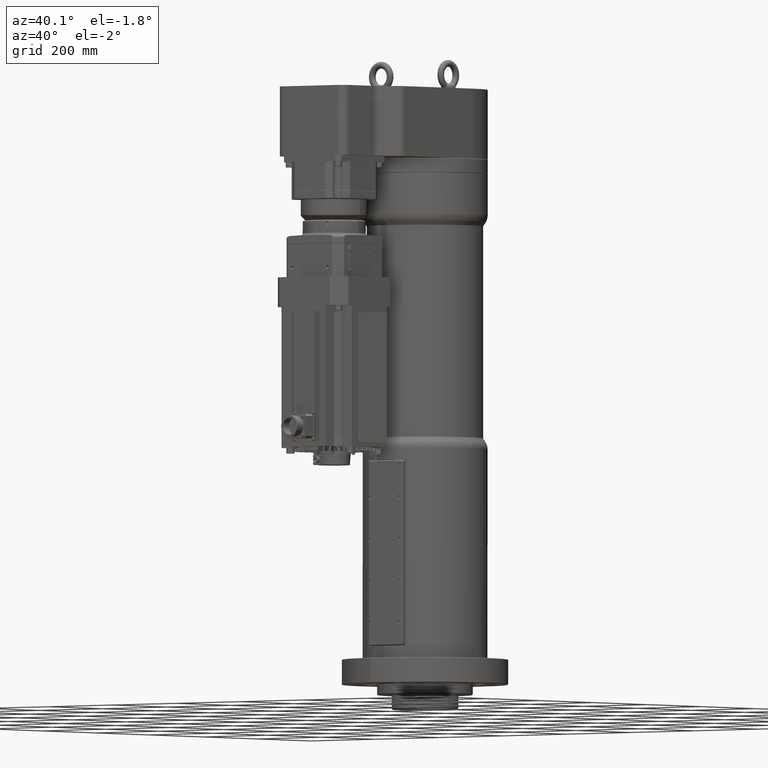
[diagram: clean part render]
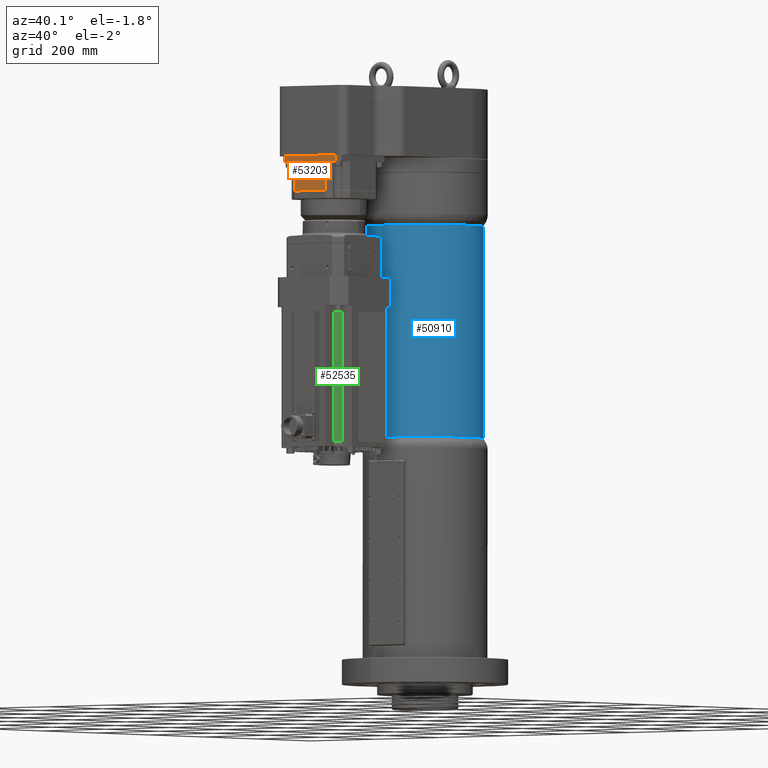
[diagram: same view with three faces highlighted in distinct colors, each labeled with its STEP entity id]
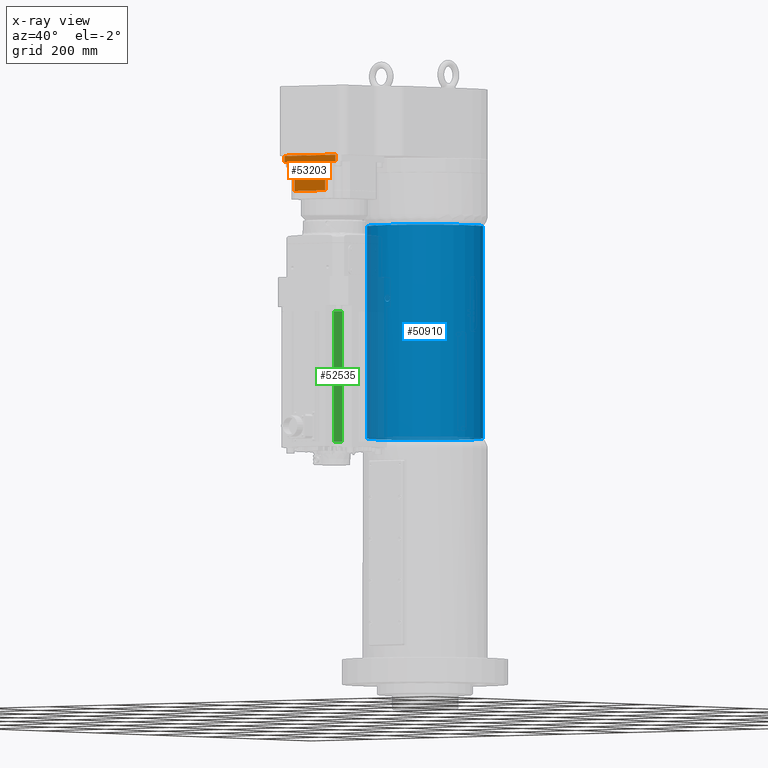
[diagram: x-ray of the same camera — body ghosted, the three highlighted faces saturated]
A machine part, auxiliary view with three faces highlighted in distinct colors.
The next image is the same camera in x-ray (body ghosted, the three faces saturated) — at least one of them is partly hidden behind the body in this view.
Their STEP definitions:

[orange] entity #53203 — the highlighted planar face has unit normal (0, -1, -0).
#7556=PLANE('',#57493);
#10201=FACE_OUTER_BOUND('',#13371,.T.);
#13371=EDGE_LOOP('',(#48344,#48345,#48346,#48347,#48348,#48349,#48350,#48351));
#13899=LINE('',#72322,#18306);
#17719=LINE('',#98074,#22126);
#17728=LINE('',#98116,#22135);
#17745=LINE('',#98165,#22152);
#17746=LINE('',#98167,#22153);
#17747=LINE('',#98169,#22154);
#17748=LINE('',#98171,#22155);
#17749=LINE('',#98172,#22156);
#18306=VECTOR('',#58795,158.7450786639);
#22126=VECTOR('',#69719,31.37253933194);
#22135=VECTOR('',#69754,31.37253933194);
#22152=VECTOR('',#69805,15.);
#22153=VECTOR('',#69808,15.);
#22154=VECTOR('',#69809,69.5);
#22155=VECTOR('',#69810,96.);
#22156=VECTOR('',#69811,69.5);
#23430=VERTEX_POINT('',#72319);
#23431=VERTEX_POINT('',#72321);
#27506=VERTEX_POINT('',#98072);
#27507=VERTEX_POINT('',#98073);
#27526=VERTEX_POINT('',#98113);
#27527=VERTEX_POINT('',#98115);
#27543=VERTEX_POINT('',#98168);
#27544=VERTEX_POINT('',#98170);
#28379=EDGE_CURVE('',#23431,#23430,#13899,.T.);
#34538=EDGE_CURVE('',#27506,#27507,#17719,.T.);
#34558=EDGE_CURVE('',#27526,#27527,#17728,.T.);
#34584=EDGE_CURVE('',#23431,#27526,#17745,.T.);
#34585=EDGE_CURVE('',#23430,#27507,#17746,.T.);
#34586=EDGE_CURVE('',#27543,#27506,#17747,.T.);
#34587=EDGE_CURVE('',#27544,#27543,#17748,.T.);
#34588=EDGE_CURVE('',#27544,#27527,#17749,.T.);
#48344=ORIENTED_EDGE('',*,*,#34558,.F.);
#48345=ORIENTED_EDGE('',*,*,#34584,.F.);
#48346=ORIENTED_EDGE('',*,*,#28379,.T.);
#48347=ORIENTED_EDGE('',*,*,#34585,.T.);
#48348=ORIENTED_EDGE('',*,*,#34538,.F.);
#48349=ORIENTED_EDGE('',*,*,#34586,.F.);
#48350=ORIENTED_EDGE('',*,*,#34587,.F.);
#48351=ORIENTED_EDGE('',*,*,#34588,.T.);
#53203=ADVANCED_FACE('',(#10201),#7556,.T.);
#57493=AXIS2_PLACEMENT_3D('',#98166,#69806,#69807);
#58795=DIRECTION('',(-1.,-8.02830024682065E-15,-1.61138470006697E-16));
#69719=DIRECTION('',(-1.,-8.02830024682065E-15,-1.61138470006697E-16));
#69754=DIRECTION('',(-1.,-8.02830024682065E-15,-1.61138470006697E-16));
#69805=DIRECTION('',(1.61138470006697E-16,2.57733127641484E-19,-1.));
#69806=DIRECTION('center_axis',(8.02830024682065E-15,-1.,-2.5773312764019E-19));
#69807=DIRECTION('ref_axis',(-1.,-8.02830024682065E-15,-1.61138470006697E-16));
#69808=DIRECTION('',(1.61138470006697E-16,2.57733127641484E-19,-1.));
#69809=DIRECTION('',(-1.61138470006697E-16,-2.57733127641484E-19,1.));
#69810=DIRECTION('',(-1.,-8.02830024682065E-15,-1.61138470006697E-16));
#69811=DIRECTION('',(-1.61138470006697E-16,-2.57733127641484E-19,1.));
#72319=CARTESIAN_POINT('',(-79.3725393319395,-427.500000000003,1258.));
#72321=CARTESIAN_POINT('',(79.3725393319405,-427.500000000001,1258.));
#72322=CARTESIAN_POINT('',(79.3725393319405,-427.500000000001,1258.));
#98072=CARTESIAN_POINT('',(-47.9999999999996,-427.500000000003,1243.));
#98073=CARTESIAN_POINT('',(-79.3725393319395,-427.500000000003,1243.));
#98074=CARTESIAN_POINT('',(-47.9999999999996,-427.500000000003,1243.));
#98113=CARTESIAN_POINT('',(79.3725393319405,-427.500000000001,1243.));
#98115=CARTESIAN_POINT('',(48.0000000000005,-427.500000000002,1243.));
#98116=CARTESIAN_POINT('',(79.3725393319405,-427.500000000001,1243.));
#98165=CARTESIAN_POINT('',(79.3725393319405,-427.500000000001,1258.));
#98166=CARTESIAN_POINT('Origin',(79.3725393319405,-427.500000000001,1258.));
#98167=CARTESIAN_POINT('',(-79.3725393319395,-427.500000000003,1258.));
#98168=CARTESIAN_POINT('',(-47.9999999999995,-427.500000000003,1173.5));
#98169=CARTESIAN_POINT('',(-47.9999999999995,-427.500000000003,1173.5));
#98170=CARTESIAN_POINT('',(48.0000000000005,-427.500000000002,1173.5));
#98171=CARTESIAN_POINT('',(48.0000000000005,-427.500000000002,1173.5));
#98172=CARTESIAN_POINT('',(48.0000000000005,-427.500000000002,1173.5));

[blue] entity #50910 — the highlighted cylindrical surface (bore or boss wall) has radius 140 mm, axis along (0, 0, -1).
#844=FACE_BOUND('',#10757,.T.);
#845=FACE_BOUND('',#10758,.T.);
#4480=CIRCLE('',#54019,140.);
#4483=CIRCLE('',#54027,140.);
#4494=CIRCLE('',#54045,140.);
#4495=CIRCLE('',#54047,140.);
#7908=FACE_OUTER_BOUND('',#10756,.T.);
#10756=EDGE_LOOP('',(#36239,#36240,#36241,#36242,#36243,#36244,#36245,#36246));
#10757=EDGE_LOOP('',(#36247,#36248,#36249,#36250,#36251,#36252));
#10758=EDGE_LOOP('',(#36253,#36254,#36255,#36256,#36257,#36258,#36259,#36260));
#14010=LINE('',#72762,#18417);
#14013=LINE('',#72768,#18420);
#14027=LINE('',#72869,#18434);
#14031=LINE('',#72890,#18438);
#14041=LINE('',#72946,#18448);
#14042=LINE('',#72947,#18449);
#18417=VECTOR('',#59080,10.);
#18420=VECTOR('',#59085,10.);
#18434=VECTOR('',#59143,10.);
#18438=VECTOR('',#59153,10.);
#18448=VECTOR('',#59211,140.);
#18449=VECTOR('',#59212,140.);
#22611=B_SPLINE_CURVE_WITH_KNOTS('',3,(#72419,#72420,#72421,#72422,#72423,
#72424,#72425,#72426,#72427,#72428,#72429,#72430,#72431,#72432,#72433,#72434,
#72435,#72436,#72437),.UNSPECIFIED.,.F.,.F.,(4,2,2,2,3,2,2,2,4),(3.53557418942342,
3.831766218132,4.12795824684059,4.42102858303591,4.71409891923122,5.00716925542654,
5.30023959162185,5.59643162033044,5.89262364903903),.UNSPECIFIED.);
#22612=B_SPLINE_CURVE_WITH_KNOTS('',3,(#72438,#72439,#72440,#72441,#72442,
#72443,#72444,#72445,#72446,#72447,#72448,#72449,#72450,#72451,#72452,#72453,
#72454,#72455),.UNSPECIFIED.,.F.,.F.,(4,2,2,2,2,2,2,2,4),(1.17852472980781,
1.47471675851639,1.77090878722498,2.0639791234203,2.35704945961561,2.65011979581093,
2.94319013200624,3.23938216071483,3.53557418942342),.UNSPECIFIED.);
#22618=B_SPLINE_CURVE_WITH_KNOTS('',3,(#72734,#72735,#72736,#72737,#72738,
#72739,#72740,#72741,#72742,#72743),.UNSPECIFIED.,.F.,.F.,(4,2,2,2,4),(0.,
0.384366731644399,0.768733463288798,1.15309982792019,1.53746619255158),
 .UNSPECIFIED.);
#22619=B_SPLINE_CURVE_WITH_KNOTS('',3,(#72750,#72751,#72752,#72753,#72754,
#72755,#72756,#72757,#72758,#72759),.UNSPECIFIED.,.F.,.F.,(4,2,2,2,4),(1.53746619255158,
1.92183255718296,2.30619892181435,2.69056565345875,3.07493238510315),
 .UNSPECIFIED.);
#22620=B_SPLINE_CURVE_WITH_KNOTS('',3,(#72774,#72775,#72776,#72777,#72778,
#72779,#72780,#72781,#72782,#72783),.UNSPECIFIED.,.F.,.F.,(4,2,2,2,4),(-1.53746619255157,
-1.15309982792019,-0.768733463288798,-0.384366731644399,0.),
 .UNSPECIFIED.);
#22621=B_SPLINE_CURVE_WITH_KNOTS('',3,(#72784,#72785,#72786,#72787,#72788,
#72789,#72790,#72791,#72792,#72793),.UNSPECIFIED.,.F.,.F.,(4,2,2,2,4),(-3.07493238510315,
-2.69056565345875,-2.30619892181435,-1.92183255718296,-1.53746619255157),
 .UNSPECIFIED.);
#22622=B_SPLINE_CURVE_WITH_KNOTS('',3,(#72831,#72832,#72833,#72834,#72835,
#72836,#72837,#72838,#72839,#72840),.UNSPECIFIED.,.F.,.F.,(4,2,2,2,4),(0.,
0.188358551712789,0.376717103425577,0.565603993585421,0.754490883745265),
 .UNSPECIFIED.);
#22623=B_SPLINE_CURVE_WITH_KNOTS('',3,(#72849,#72850,#72851,#72852,#72853,
#72854,#72855,#72856,#72857,#72858),.UNSPECIFIED.,.F.,.F.,(4,2,2,2,4),(0.75378858509401,
0.942675475253856,1.1315623654137,1.31992091712649,1.50827946883927),
 .UNSPECIFIED.);
#22624=B_SPLINE_CURVE_WITH_KNOTS('',3,(#72875,#72876,#72877,#72878,#72879,
#72880,#72881,#72882,#72883,#72884),.UNSPECIFIED.,.F.,.F.,(4,2,2,2,4),(1.50827946883928,
1.69663802055208,1.88499657226487,2.07388346242471,2.26277035258456),
 .UNSPECIFIED.);
#22625=B_SPLINE_CURVE_WITH_KNOTS('',3,(#72896,#72897,#72898,#72899,#72900,
#72901,#72902,#72903,#72904,#72905),.UNSPECIFIED.,.F.,.F.,(4,2,2,2,4),(-0.754490883745259,
-0.565603993585415,-0.37671710342557,-0.188358551712785,0.),
 .UNSPECIFIED.);
#23459=VERTEX_POINT('',#72416);
#23460=VERTEX_POINT('',#72418);
#23545=VERTEX_POINT('',#72732);
#23546=VERTEX_POINT('',#72733);
#23549=VERTEX_POINT('',#72748);
#23550=VERTEX_POINT('',#72761);
#23552=VERTEX_POINT('',#72767);
#23554=VERTEX_POINT('',#72773);
#23569=VERTEX_POINT('',#72829);
#23570=VERTEX_POINT('',#72830);
#23573=VERTEX_POINT('',#72847);
#23574=VERTEX_POINT('',#72848);
#23577=VERTEX_POINT('',#72868);
#23579=VERTEX_POINT('',#72874);
#23581=VERTEX_POINT('',#72889);
#23583=VERTEX_POINT('',#72895);
#23592=VERTEX_POINT('',#72940);
#23593=VERTEX_POINT('',#72944);
#28430=EDGE_CURVE('',#23460,#23459,#22611,.T.);
#28431=EDGE_CURVE('',#23459,#23460,#22612,.T.);
#28537=EDGE_CURVE('',#23545,#23546,#22618,.T.);
#28541=EDGE_CURVE('',#23546,#23549,#22619,.T.);
#28542=EDGE_CURVE('',#23549,#23550,#14010,.T.);
#28545=EDGE_CURVE('',#23552,#23545,#14013,.T.);
#28548=EDGE_CURVE('',#23554,#23552,#22620,.T.);
#28549=EDGE_CURVE('',#23550,#23554,#22621,.T.);
#28567=EDGE_CURVE('',#23569,#23570,#22622,.T.);
#28571=EDGE_CURVE('',#23573,#23574,#22623,.T.);
#28575=EDGE_CURVE('',#23570,#23573,#4480,.T.);
#28577=EDGE_CURVE('',#23574,#23577,#14027,.T.);
#28580=EDGE_CURVE('',#23577,#23579,#22624,.T.);
#28583=EDGE_CURVE('',#23581,#23569,#14031,.T.);
#28586=EDGE_CURVE('',#23583,#23581,#22625,.T.);
#28589=EDGE_CURVE('',#23579,#23583,#4483,.T.);
#28605=EDGE_CURVE('',#23592,#23592,#4494,.T.);
#28607=EDGE_CURVE('',#23593,#23593,#4495,.T.);
#28608=EDGE_CURVE('',#23593,#23459,#14041,.T.);
#28609=EDGE_CURVE('',#23460,#23592,#14042,.T.);
#36239=ORIENTED_EDGE('',*,*,#28607,.F.);
#36240=ORIENTED_EDGE('',*,*,#28608,.T.);
#36241=ORIENTED_EDGE('',*,*,#28431,.T.);
#36242=ORIENTED_EDGE('',*,*,#28609,.T.);
#36243=ORIENTED_EDGE('',*,*,#28605,.T.);
#36244=ORIENTED_EDGE('',*,*,#28609,.F.);
#36245=ORIENTED_EDGE('',*,*,#28430,.T.);
#36246=ORIENTED_EDGE('',*,*,#28608,.F.);
#36247=ORIENTED_EDGE('',*,*,#28549,.T.);
#36248=ORIENTED_EDGE('',*,*,#28548,.T.);
#36249=ORIENTED_EDGE('',*,*,#28545,.T.);
#36250=ORIENTED_EDGE('',*,*,#28537,.T.);
#36251=ORIENTED_EDGE('',*,*,#28541,.T.);
#36252=ORIENTED_EDGE('',*,*,#28542,.T.);
#36253=ORIENTED_EDGE('',*,*,#28589,.T.);
#36254=ORIENTED_EDGE('',*,*,#28586,.T.);
#36255=ORIENTED_EDGE('',*,*,#28583,.T.);
#36256=ORIENTED_EDGE('',*,*,#28567,.T.);
#36257=ORIENTED_EDGE('',*,*,#28575,.T.);
#36258=ORIENTED_EDGE('',*,*,#28571,.T.);
#36259=ORIENTED_EDGE('',*,*,#28577,.T.);
#36260=ORIENTED_EDGE('',*,*,#28580,.T.);
#50229=CYLINDRICAL_SURFACE('',#54046,140.);
#50910=ADVANCED_FACE('',(#7908,#844,#845),#50229,.T.);
#54019=AXIS2_PLACEMENT_3D('',#72865,#59138,#59139);
#54027=AXIS2_PLACEMENT_3D('',#72910,#59163,#59164);
#54045=AXIS2_PLACEMENT_3D('',#72941,#59204,#59205);
#54046=AXIS2_PLACEMENT_3D('',#72943,#59207,#59208);
#54047=AXIS2_PLACEMENT_3D('',#72945,#59209,#59210);
#59080=DIRECTION('',(0.,0.,1.));
#59085=DIRECTION('',(0.,0.,-1.));
#59138=DIRECTION('center_axis',(0.,0.,-1.));
#59139=DIRECTION('ref_axis',(1.03537993810258E-30,1.,0.));
#59143=DIRECTION('',(0.,0.,1.));
#59153=DIRECTION('',(0.,0.,-1.));
#59163=DIRECTION('center_axis',(9.79608551139843E-17,-1.01426704104393E-46,
1.));
#59164=DIRECTION('ref_axis',(1.03537993810258E-30,1.,0.));
#59204=DIRECTION('center_axis',(0.,0.,-1.));
#59205=DIRECTION('ref_axis',(1.,-1.03537993810258E-30,0.));
#59207=DIRECTION('center_axis',(0.,0.,-1.));
#59208=DIRECTION('ref_axis',(1.03537993810258E-30,1.,0.));
#59209=DIRECTION('center_axis',(0.,0.,-1.));
#59210=DIRECTION('ref_axis',(1.,-1.03537993810258E-30,0.));
#59211=DIRECTION('',(0.,0.,1.));
#59212=DIRECTION('',(0.,0.,1.));
#72416=CARTESIAN_POINT('',(-1.44953191334361E-28,-140.,915.));
#72418=CARTESIAN_POINT('',(-1.44953191334361E-28,-140.,931.));
#72419=CARTESIAN_POINT('Ctrl Pts',(-1.16573417585641E-14,-140.,931.));
#72420=CARTESIAN_POINT('Ctrl Pts',(0.98730676236195,-140.,931.));
#72421=CARTESIAN_POINT('Ctrl Pts',(2.03430028405672,-139.988472015113,930.786688694851));
#72422=CARTESIAN_POINT('Ctrl Pts',(3.94245003654241,-139.947732245081,929.935904367843));
#72423=CARTESIAN_POINT('Ctrl Pts',(4.80379668046354,-139.919173776903,929.298827305031));
#72424=CARTESIAN_POINT('Ctrl Pts',(6.13979334772044,-139.866883573109,927.859907137907));
#72425=CARTESIAN_POINT('Ctrl Pts',(6.70786443641695,-139.839712976476,926.965013788229));
#72426=CARTESIAN_POINT('Ctrl Pts',(7.45728406759948,-139.801751344999,925.02348744234));
#72427=CARTESIAN_POINT('Ctrl Pts',(7.63877817086743,-139.791448479713,923.976901120651));
#72428=CARTESIAN_POINT('Ctrl Pts',(7.63877817086743,-139.791448479713,923.));
#72429=CARTESIAN_POINT('Ctrl Pts',(7.63877817086743,-139.791448479713,922.023098879349));
#72430=CARTESIAN_POINT('Ctrl Pts',(7.45728406759948,-139.801751344999,920.97651255766));
#72431=CARTESIAN_POINT('Ctrl Pts',(6.70786443641695,-139.839712976476,919.034986211771));
#72432=CARTESIAN_POINT('Ctrl Pts',(6.13979334772044,-139.866883573109,918.140092862093));
#72433=CARTESIAN_POINT('Ctrl Pts',(4.80379668046354,-139.919173776903,916.701172694969));
#72434=CARTESIAN_POINT('Ctrl Pts',(3.94245003654241,-139.947732245081,916.064095632157));
#72435=CARTESIAN_POINT('Ctrl Pts',(2.03430028405673,-139.988472015113,915.21331130515));
#72436=CARTESIAN_POINT('Ctrl Pts',(0.987306762361966,-140.,915.));
#72437=CARTESIAN_POINT('Ctrl Pts',(5.27355936696949E-15,-140.,915.));
#72438=CARTESIAN_POINT('Ctrl Pts',(2.4980018054066E-15,-140.,915.));
#72439=CARTESIAN_POINT('Ctrl Pts',(-0.987306762361962,-140.,915.));
#72440=CARTESIAN_POINT('Ctrl Pts',(-2.03430028405672,-139.988472015113,
915.21331130515));
#72441=CARTESIAN_POINT('Ctrl Pts',(-3.94245003654241,-139.947732245081,
916.064095632157));
#72442=CARTESIAN_POINT('Ctrl Pts',(-4.80379668046356,-139.919173776903,
916.701172694969));
#72443=CARTESIAN_POINT('Ctrl Pts',(-6.13979334772045,-139.866883573109,
918.140092862093));
#72444=CARTESIAN_POINT('Ctrl Pts',(-6.70786443641688,-139.839712976476,
919.034986211771));
#72445=CARTESIAN_POINT('Ctrl Pts',(-7.45728406759941,-139.801751344999,
920.97651255766));
#72446=CARTESIAN_POINT('Ctrl Pts',(-7.63877817086743,-139.791448479713,
922.023098879349));
#72447=CARTESIAN_POINT('Ctrl Pts',(-7.63877817086743,-139.791448479713,
923.976901120651));
#72448=CARTESIAN_POINT('Ctrl Pts',(-7.45728406759948,-139.801751344999,
925.02348744234));
#72449=CARTESIAN_POINT('Ctrl Pts',(-6.70786443641694,-139.839712976476,
926.965013788229));
#72450=CARTESIAN_POINT('Ctrl Pts',(-6.13979334772041,-139.866883573109,
927.859907137907));
#72451=CARTESIAN_POINT('Ctrl Pts',(-4.8037966804635,-139.919173776903,929.298827305031));
#72452=CARTESIAN_POINT('Ctrl Pts',(-3.94245003654238,-139.947732245081,
929.935904367843));
#72453=CARTESIAN_POINT('Ctrl Pts',(-2.0343002840567,-139.988472015113,930.786688694851));
#72454=CARTESIAN_POINT('Ctrl Pts',(-0.987306762361947,-140.,931.));
#72455=CARTESIAN_POINT('Ctrl Pts',(7.7715611723761E-15,-140.,931.));
#72732=CARTESIAN_POINT('',(38.1707013243615,134.695944855093,857.5));
#72733=CARTESIAN_POINT('',(47.8828200655936,131.556966910027,847.3));
#72734=CARTESIAN_POINT('Ctrl Pts',(38.1707013243615,134.695944855094,857.5));
#72735=CARTESIAN_POINT('Ctrl Pts',(38.1707013243615,134.695944855094,856.218777561186));
#72736=CARTESIAN_POINT('Ctrl Pts',(38.4180517913412,134.626615111378,854.852466209477));
#72737=CARTESIAN_POINT('Ctrl Pts',(39.4203764127702,134.336540533988,852.339531628778));
#72738=CARTESIAN_POINT('Ctrl Pts',(40.1749796720849,134.114849529994,851.192869784062));
#72739=CARTESIAN_POINT('Ctrl Pts',(41.9084445851966,133.583322787635,849.382152744216));
#72740=CARTESIAN_POINT('Ctrl Pts',(43.0029565860174,133.23785372442,848.597234174479));
#72741=CARTESIAN_POINT('Ctrl Pts',(45.3883202488278,132.444253651116,847.556145254377));
#72742=CARTESIAN_POINT('Ctrl Pts',(46.6788659438522,131.995170373763,847.3));
#72743=CARTESIAN_POINT('Ctrl Pts',(47.8828200655936,131.556966910027,847.3));
#72748=CARTESIAN_POINT('',(57.3404307883941,127.71873393125,857.5));
#72750=CARTESIAN_POINT('Ctrl Pts',(47.8828200655936,131.556966910027,847.3));
#72751=CARTESIAN_POINT('Ctrl Pts',(49.086774187335,131.118763446291,847.3));
#72752=CARTESIAN_POINT('Ctrl Pts',(50.3640547119994,130.633234412909,847.556145254377));
#72753=CARTESIAN_POINT('Ctrl Pts',(52.7014655848792,129.707885132071,848.597234174479));
#72754=CARTESIAN_POINT('Ctrl Pts',(53.7619736543998,129.268991035436,849.382152744216));
#72755=CARTESIAN_POINT('Ctrl Pts',(55.4315436226364,128.561914374815,851.192869784062));
#72756=CARTESIAN_POINT('Ctrl Pts',(56.1521034867402,128.246689911197,852.339531628778));
#72757=CARTESIAN_POINT('Ctrl Pts',(57.1063850374182,127.824618081758,854.852466209477));
#72758=CARTESIAN_POINT('Ctrl Pts',(57.3404307883941,127.71873393125,856.218777561186));
#72759=CARTESIAN_POINT('Ctrl Pts',(57.3404307883941,127.71873393125,857.5));
#72761=CARTESIAN_POINT('',(57.3404307883941,127.71873393125,969.5));
#72762=CARTESIAN_POINT('',(57.3404307883941,127.71873393125,844.));
#72767=CARTESIAN_POINT('',(38.1707013243615,134.695944855093,969.5));
#72768=CARTESIAN_POINT('',(38.1707013243615,134.695944855093,844.));
#72773=CARTESIAN_POINT('',(47.8828200655936,131.556966910027,979.7));
#72774=CARTESIAN_POINT('Ctrl Pts',(47.8828200655936,131.556966910027,979.7));
#72775=CARTESIAN_POINT('Ctrl Pts',(46.6788659438522,131.995170373763,979.7));
#72776=CARTESIAN_POINT('Ctrl Pts',(45.3883202488278,132.444253651116,979.443854745624));
#72777=CARTESIAN_POINT('Ctrl Pts',(43.0029565860174,133.23785372442,978.402765825522));
#72778=CARTESIAN_POINT('Ctrl Pts',(41.9084445851966,133.583322787635,977.617847255784));
#72779=CARTESIAN_POINT('Ctrl Pts',(40.1749796720849,134.114849529994,975.807130215939));
#72780=CARTESIAN_POINT('Ctrl Pts',(39.4203764127702,134.336540533988,974.660468371222));
#72781=CARTESIAN_POINT('Ctrl Pts',(38.4180517913412,134.626615111378,972.147533790524));
#72782=CARTESIAN_POINT('Ctrl Pts',(38.1707013243615,134.695944855094,970.781222438815));
#72783=CARTESIAN_POINT('Ctrl Pts',(38.1707013243615,134.695944855094,969.5));
#72784=CARTESIAN_POINT('Ctrl Pts',(57.3404307883941,127.71873393125,969.5));
#72785=CARTESIAN_POINT('Ctrl Pts',(57.3404307883941,127.71873393125,970.781222438815));
#72786=CARTESIAN_POINT('Ctrl Pts',(57.1063850374182,127.824618081758,972.147533790524));
#72787=CARTESIAN_POINT('Ctrl Pts',(56.1521034867402,128.246689911197,974.660468371222));
#72788=CARTESIAN_POINT('Ctrl Pts',(55.4315436226364,128.561914374815,975.807130215939));
#72789=CARTESIAN_POINT('Ctrl Pts',(53.7619736543998,129.268991035436,977.617847255784));
#72790=CARTESIAN_POINT('Ctrl Pts',(52.7014655848793,129.707885132071,978.402765825522));
#72791=CARTESIAN_POINT('Ctrl Pts',(50.3640547119995,130.633234412909,979.443854745624));
#72792=CARTESIAN_POINT('Ctrl Pts',(49.086774187335,131.118763446291,979.7));
#72793=CARTESIAN_POINT('Ctrl Pts',(47.8828200655936,131.556966910027,979.7));
#72829=CARTESIAN_POINT('',(-13.5,139.347586990231,615.5));
#72830=CARTESIAN_POINT('',(-8.50000000000001,139.741726052028,610.5));
#72831=CARTESIAN_POINT('Ctrl Pts',(-13.5,139.347586990231,615.5));
#72832=CARTESIAN_POINT('Ctrl Pts',(-13.5,139.347586990231,614.872138160958));
#72833=CARTESIAN_POINT('Ctrl Pts',(-13.3745022227988,139.359923345882,614.202654875722));
#72834=CARTESIAN_POINT('Ctrl Pts',(-12.8647217858521,139.40790679853,612.971545898238));
#72835=CARTESIAN_POINT('Ctrl Pts',(-12.4804582623454,139.443306654751,612.409902658156));
#72836=CARTESIAN_POINT('Ctrl Pts',(-11.5934432801477,139.519858057147,611.52186417809));
#72837=CARTESIAN_POINT('Ctrl Pts',(-11.031016999541,139.566108097098,611.136633320354));
#72838=CARTESIAN_POINT('Ctrl Pts',(-9.79853633648268,139.658048644079,610.625698075147));
#72839=CARTESIAN_POINT('Ctrl Pts',(-9.12846142998897,139.703498943305,610.5));
#72840=CARTESIAN_POINT('Ctrl Pts',(-8.5,139.741726052028,610.5));
#72847=CARTESIAN_POINT('',(8.49999999999996,139.741726052028,610.5));
#72848=CARTESIAN_POINT('',(13.5,139.347586990231,615.5));
#72849=CARTESIAN_POINT('Ctrl Pts',(8.49999999999996,139.741726052028,610.5));
#72850=CARTESIAN_POINT('Ctrl Pts',(9.12846142998893,139.703498943305,610.5));
#72851=CARTESIAN_POINT('Ctrl Pts',(9.79853633648265,139.658048644079,610.625698075147));
#72852=CARTESIAN_POINT('Ctrl Pts',(11.031016999541,139.566108097098,611.136633320354));
#72853=CARTESIAN_POINT('Ctrl Pts',(11.5934432801477,139.519858057147,611.52186417809));
#72854=CARTESIAN_POINT('Ctrl Pts',(12.4804582623454,139.443306654751,612.409902658156));
#72855=CARTESIAN_POINT('Ctrl Pts',(12.864721785852,139.40790679853,612.971545898238));
#72856=CARTESIAN_POINT('Ctrl Pts',(13.3745022227988,139.359923345882,614.202654875722));
#72857=CARTESIAN_POINT('Ctrl Pts',(13.5,139.347586990231,614.872138160957));
#72858=CARTESIAN_POINT('Ctrl Pts',(13.5,139.347586990231,615.5));
#72865=CARTESIAN_POINT('Origin',(0.,0.,610.5));
#72868=CARTESIAN_POINT('',(13.5,139.347586990231,843.5));
#72869=CARTESIAN_POINT('',(13.5,139.347586990231,844.));
#72874=CARTESIAN_POINT('',(8.50000000000001,139.741726052028,848.5));
#72875=CARTESIAN_POINT('Ctrl Pts',(13.5,139.347586990231,843.5));
#72876=CARTESIAN_POINT('Ctrl Pts',(13.5,139.347586990231,844.127861839043));
#72877=CARTESIAN_POINT('Ctrl Pts',(13.3745022227989,139.359923345882,844.797345124278));
#72878=CARTESIAN_POINT('Ctrl Pts',(12.8647217858521,139.40790679853,846.028454101762));
#72879=CARTESIAN_POINT('Ctrl Pts',(12.4804582623455,139.443306654751,846.590097341844));
#72880=CARTESIAN_POINT('Ctrl Pts',(11.5934432801477,139.519858057147,847.47813582191));
#72881=CARTESIAN_POINT('Ctrl Pts',(11.0310169995409,139.566108097098,847.863366679646));
#72882=CARTESIAN_POINT('Ctrl Pts',(9.79853633648265,139.658048644079,848.374301924853));
#72883=CARTESIAN_POINT('Ctrl Pts',(9.12846142998892,139.703498943305,848.5));
#72884=CARTESIAN_POINT('Ctrl Pts',(8.49999999999996,139.741726052028,848.5));
#72889=CARTESIAN_POINT('',(-13.5,139.347586990231,843.5));
#72890=CARTESIAN_POINT('',(-13.5,139.347586990231,844.));
#72895=CARTESIAN_POINT('',(-8.5,139.741726052028,848.5));
#72896=CARTESIAN_POINT('Ctrl Pts',(-8.5,139.741726052028,848.5));
#72897=CARTESIAN_POINT('Ctrl Pts',(-9.12846142998896,139.703498943305,848.5));
#72898=CARTESIAN_POINT('Ctrl Pts',(-9.79853633648266,139.658048644079,848.374301924853));
#72899=CARTESIAN_POINT('Ctrl Pts',(-11.0310169995409,139.566108097098,847.863366679646));
#72900=CARTESIAN_POINT('Ctrl Pts',(-11.5934432801477,139.519858057147,847.47813582191));
#72901=CARTESIAN_POINT('Ctrl Pts',(-12.4804582623454,139.443306654751,846.590097341844));
#72902=CARTESIAN_POINT('Ctrl Pts',(-12.8647217858521,139.40790679853,846.028454101762));
#72903=CARTESIAN_POINT('Ctrl Pts',(-13.3745022227988,139.359923345882,844.797345124278));
#72904=CARTESIAN_POINT('Ctrl Pts',(-13.5,139.347586990231,844.127861839043));
#72905=CARTESIAN_POINT('Ctrl Pts',(-13.5,139.347586990231,843.5));
#72910=CARTESIAN_POINT('Origin',(0.,0.,848.5));
#72940=CARTESIAN_POINT('',(-1.71450551880631E-14,-140.,1098.));
#72941=CARTESIAN_POINT('Origin',(0.,0.,1098.));
#72943=CARTESIAN_POINT('Origin',(0.,0.,844.));
#72944=CARTESIAN_POINT('',(-1.71450551880631E-14,-140.,590.));
#72945=CARTESIAN_POINT('Origin',(0.,0.,590.));
#72946=CARTESIAN_POINT('',(-1.71450551880631E-14,-140.,844.));
#72947=CARTESIAN_POINT('',(-1.71450551880631E-14,-140.,844.));

[green] entity #52535 — the highlighted cylindrical surface (partial cylindrical patch) has radius 105.5 mm, axis along (0, -0, 1).
#5553=CIRCLE('',#56605,105.5);
#5554=CIRCLE('',#56606,105.5);
#9533=FACE_OUTER_BOUND('',#12612,.T.);
#12612=EDGE_LOOP('',(#44658,#44659,#44660,#44661));
#16360=LINE('',#94939,#20767);
#16362=LINE('',#94945,#20769);
#20767=VECTOR('',#66642,1000.);
#20769=VECTOR('',#66648,1000.);
#26589=VERTEX_POINT('',#94936);
#26590=VERTEX_POINT('',#94938);
#26591=VERTEX_POINT('',#94942);
#26592=VERTEX_POINT('',#94944);
#32978=EDGE_CURVE('',#26590,#26589,#16360,.T.);
#32980=EDGE_CURVE('',#26591,#26589,#5553,.T.);
#32981=EDGE_CURVE('',#26592,#26591,#16362,.T.);
#32982=EDGE_CURVE('',#26592,#26590,#5554,.T.);
#44658=ORIENTED_EDGE('',*,*,#32978,.T.);
#44659=ORIENTED_EDGE('',*,*,#32980,.F.);
#44660=ORIENTED_EDGE('',*,*,#32981,.F.);
#44661=ORIENTED_EDGE('',*,*,#32982,.T.);
#50534=CYLINDRICAL_SURFACE('',#56604,105.5);
#52535=ADVANCED_FACE('',(#9533),#50534,.T.);
#56604=AXIS2_PLACEMENT_3D('',#94941,#66644,#66645);
#56605=AXIS2_PLACEMENT_3D('',#94943,#66646,#66647);
#56606=AXIS2_PLACEMENT_3D('',#94946,#66649,#66650);
#66642=DIRECTION('',(3.39018546603515E-16,-1.30578237199904E-15,1.));
#66644=DIRECTION('center_axis',(3.39018546603515E-16,-1.30578237199904E-15,
1.));
#66645=DIRECTION('ref_axis',(1.,-1.54043444666749E-15,-3.39018546603517E-16));
#66646=DIRECTION('center_axis',(3.39018546603515E-16,-1.30578237199904E-15,
1.));
#66647=DIRECTION('ref_axis',(1.,-1.54043444666749E-15,-3.39018546603517E-16));
#66648=DIRECTION('',(3.39018546603515E-16,-1.30578237199904E-15,1.));
#66649=DIRECTION('center_axis',(3.39018546603515E-16,-1.30578237199904E-15,
1.));
#66650=DIRECTION('ref_axis',(1.,-1.54043444666749E-15,-3.39018546603517E-16));
#94936=CARTESIAN_POINT('',(81.1205075332558,-404.951562306196,883.400000000006));
#94938=CARTESIAN_POINT('',(81.1205075332557,-404.951562306196,571.100000000006));
#94939=CARTESIAN_POINT('',(81.1205075332557,-404.951562306196,572.373016277925));
#94941=CARTESIAN_POINT('Origin',(-4.09587425939837E-12,-337.500000000001,
572.373016277925));
#94942=CARTESIAN_POINT('',(67.4515623061915,-418.620507533261,883.400000000006));
#94943=CARTESIAN_POINT('Origin',(-3.99043034342244E-12,-337.500000000002,
883.400000000006));
#94944=CARTESIAN_POINT('',(67.4515623061914,-418.62050753326,571.100000000006));
#94945=CARTESIAN_POINT('',(67.4515623061914,-418.62050753326,572.373016277925));
#94946=CARTESIAN_POINT('Origin',(-4.09630583552671E-12,-337.500000000001,
571.100000000007));